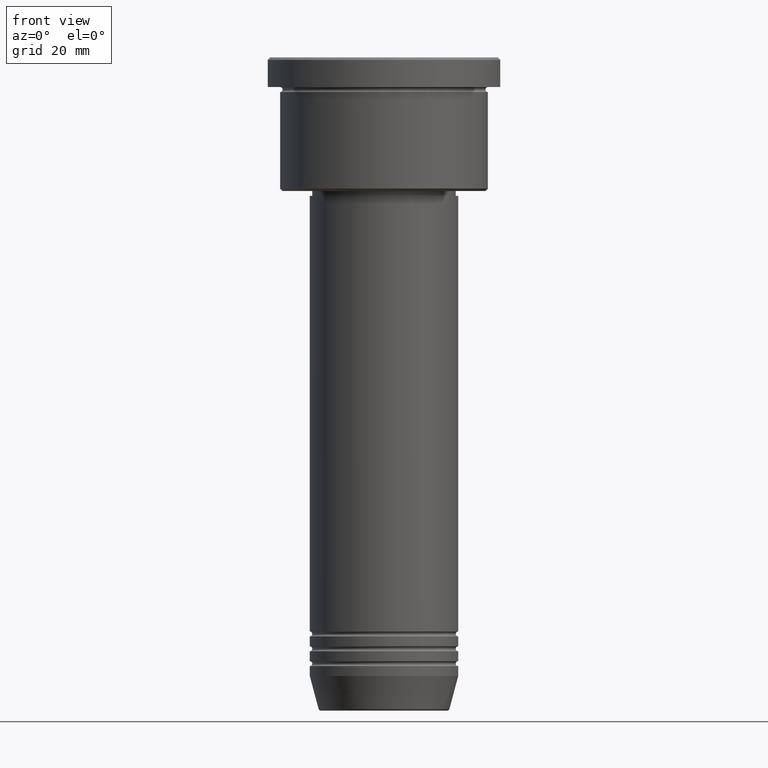
[diagram: clean part render]
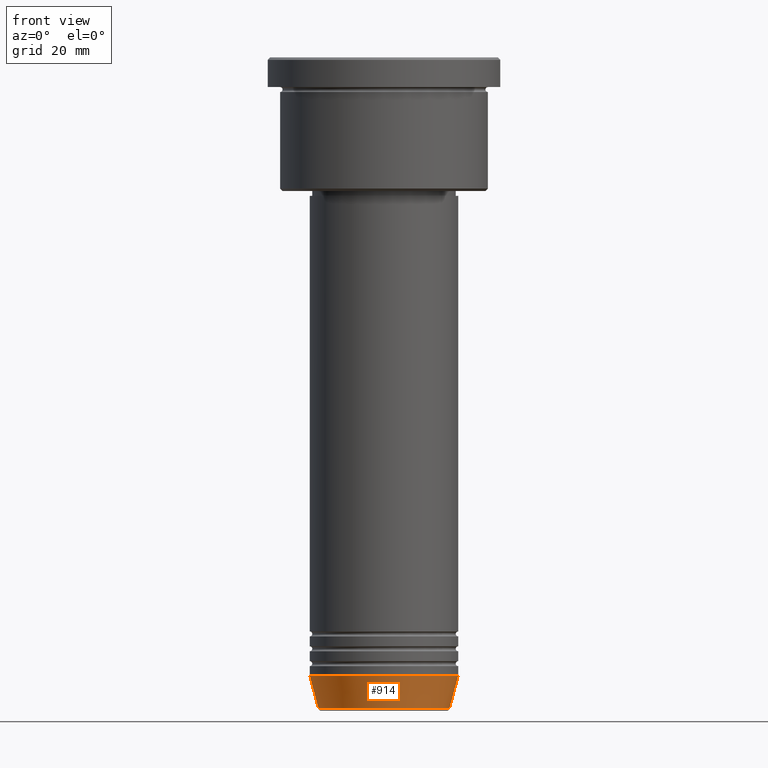
[diagram: same view with one face highlighted and labeled with its STEP entity id]
A machine part, front view. The second image highlights one B-rep face of the part: STEP entity #914.
In plain terms, the highlighted conical surface has half-angle 15 deg.
Its self-contained STEP definition (entity closure, byte-faithful):
#23 = DIRECTION ( 'NONE',  ( -0.000000000000000000, -0.000000000000000000, 1.000000000000000000 ) ) ;
#40 = CARTESIAN_POINT ( 'NONE',  ( 15.00000000000000000, 0.000000000000000000, -125.0000000000000000 ) ) ;
#70 = DIRECTION ( 'NONE',  ( -0.000000000000000000, -0.000000000000000000, 1.000000000000000000 ) ) ;
#79 = DIRECTION ( 'NONE',  ( 1.000000000000000000, 0.000000000000000000, 0.000000000000000000 ) ) ;
#99 = DIRECTION ( 'NONE',  ( 1.000000000000000000, 0.000000000000000000, 0.000000000000000000 ) ) ;
#103 = CARTESIAN_POINT ( 'NONE',  ( -15.00000000000000000, 1.836970198721029589E-15, -125.0000000000000000 ) ) ;
#114 = EDGE_CURVE ( 'NONE', #827, #211, #416, .T. ) ;
#128 = DIRECTION ( 'NONE',  ( -0.000000000000000000, -0.000000000000000000, 1.000000000000000000 ) ) ;
#210 = VECTOR ( 'NONE', #631, 1000.000000000000000 ) ;
#211 = VERTEX_POINT ( 'NONE', #292 ) ;
#217 = DIRECTION ( 'NONE',  ( 1.000000000000000000, 0.000000000000000000, 0.000000000000000000 ) ) ;
#263 = VECTOR ( 'NONE', #595, 1000.000000000000000 ) ;
#292 = CARTESIAN_POINT ( 'NONE',  ( 13.22365507213719305, 0.000000000000000000, -131.6294095225512422 ) ) ;
#293 = CARTESIAN_POINT ( 'NONE',  ( -13.22365507213719305, 1.728200442216588386E-15, -131.6294095225512422 ) ) ;
#307 = ORIENTED_EDGE ( 'NONE', *, *, #114, .T. ) ;
#324 = CARTESIAN_POINT ( 'NONE',  ( 15.00000000000000000, 0.000000000000000000, -125.0000000000000000 ) ) ;
#396 = ORIENTED_EDGE ( 'NONE', *, *, #918, .T. ) ;
#403 = LINE ( 'NONE', #40, #263 ) ;
#416 = CIRCLE ( 'NONE', #1066, 13.22365507213719305 ) ;
#453 = VERTEX_POINT ( 'NONE', #324 ) ;
#471 = VERTEX_POINT ( 'NONE', #1148 ) ;
#542 = ORIENTED_EDGE ( 'NONE', *, *, #1088, .F. ) ;
#583 = CONICAL_SURFACE ( 'NONE', #1146, 15.00000000000000000, 0.2617993877991500740 ) ;
#595 = DIRECTION ( 'NONE',  ( 0.2588190451025213501, 0.000000000000000000, 0.9659258262890680902 ) ) ;
#631 = DIRECTION ( 'NONE',  ( -0.2588190451025213501, 3.169619151431772337E-17, 0.9659258262890680902 ) ) ;
#640 = EDGE_CURVE ( 'NONE', #827, #471, #1095, .T. ) ;
#698 = AXIS2_PLACEMENT_3D ( 'NONE', #1159, #70, #79 ) ;
#789 = CIRCLE ( 'NONE', #698, 15.00000000000000000 ) ;
#818 = EDGE_LOOP ( 'NONE', ( #1143, #307, #396, #542 ) ) ;
#827 = VERTEX_POINT ( 'NONE', #293 ) ;
#857 = FACE_OUTER_BOUND ( 'NONE', #818, .T. ) ;
#871 = CARTESIAN_POINT ( 'NONE',  ( 0.000000000000000000, 0.000000000000000000, -125.0000000000000000 ) ) ;
#914 = ADVANCED_FACE ( 'NONE', ( #857 ), #583, .T. ) ;
#915 = CARTESIAN_POINT ( 'NONE',  ( 0.000000000000000000, 0.000000000000000000, -131.6294095225512422 ) ) ;
#918 = EDGE_CURVE ( 'NONE', #211, #453, #403, .T. ) ;
#1066 = AXIS2_PLACEMENT_3D ( 'NONE', #915, #23, #99 ) ;
#1088 = EDGE_CURVE ( 'NONE', #471, #453, #789, .T. ) ;
#1095 = LINE ( 'NONE', #103, #210 ) ;
#1143 = ORIENTED_EDGE ( 'NONE', *, *, #640, .F. ) ;
#1146 = AXIS2_PLACEMENT_3D ( 'NONE', #871, #128, #217 ) ;
#1148 = CARTESIAN_POINT ( 'NONE',  ( -15.00000000000000000, 1.836970198721029589E-15, -125.0000000000000000 ) ) ;
#1159 = CARTESIAN_POINT ( 'NONE',  ( 0.000000000000000000, 0.000000000000000000, -125.0000000000000000 ) ) ;